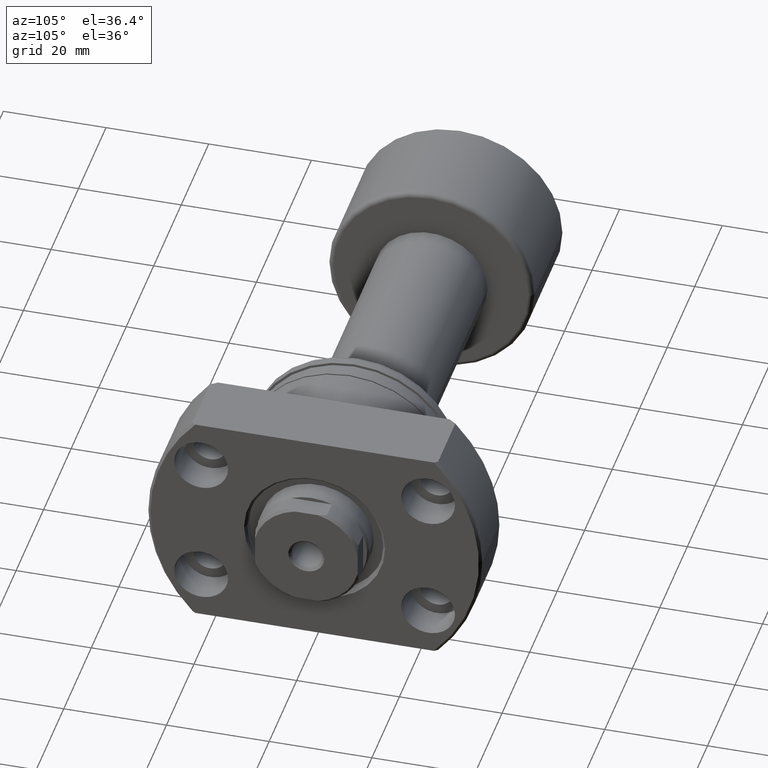
[diagram: clean part render]
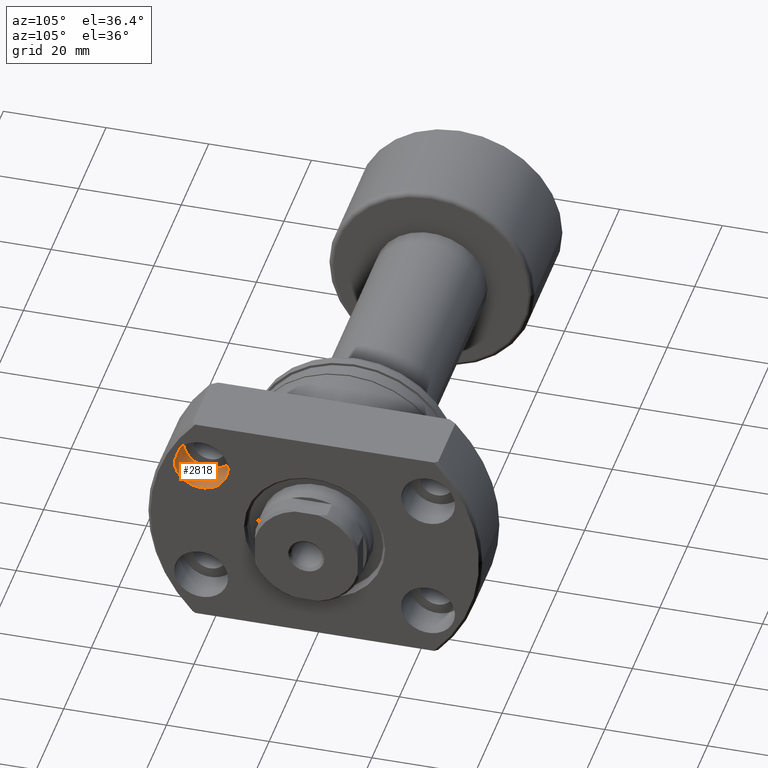
[diagram: same view with one face highlighted and labeled with its STEP entity id]
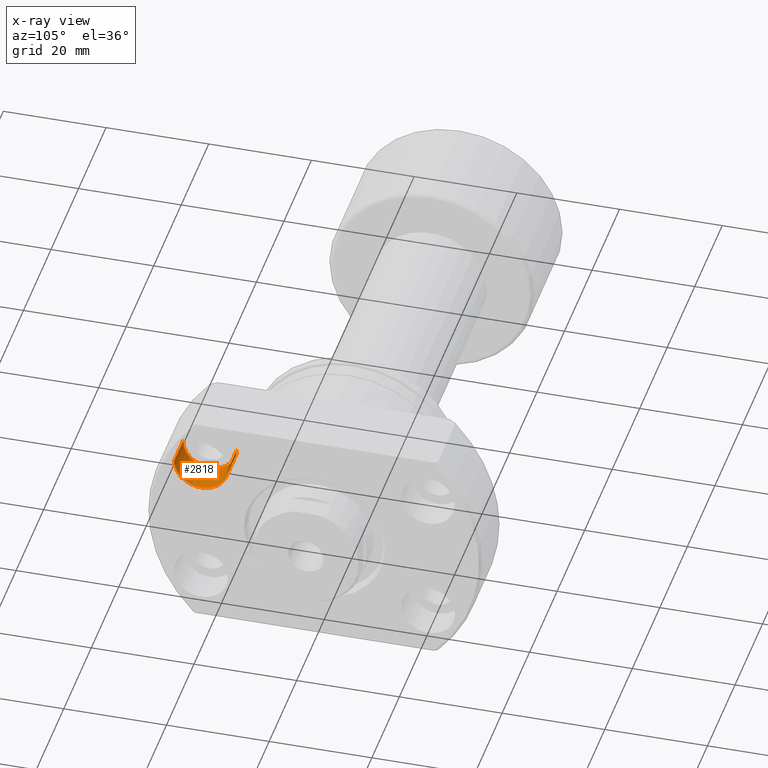
[diagram: x-ray of the same camera — body ghosted, the highlighted face saturated]
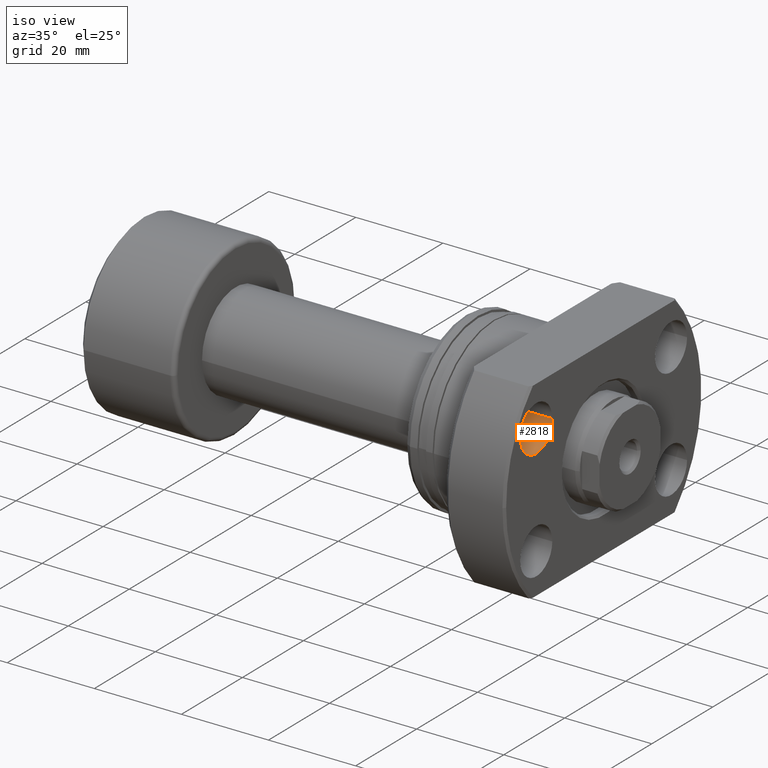
[diagram: same view with one face highlighted and labeled with its STEP entity id]
A machine part, auxiliary view. The second image highlights one B-rep face of the part: STEP entity #2818.
The next image is the same camera in x-ray: the body ghosted, the highlighted face saturated — about 0% of this face is hidden behind the body in this view.
A second angle (iso view) of the same face is appended — the face is thin or edge-on in the first view.
In plain terms, the highlighted cylindrical surface (edge-blend (fillet) strip) has radius 5.25 mm, axis along (1, -0, 0).
Its self-contained STEP definition (entity closure, byte-faithful):
#30 = EDGE_CURVE ( 'NONE', #141, #59, #115, .T. ) ;
#59 = VERTEX_POINT ( 'NONE', #2413 ) ;
#72 = VERTEX_POINT ( 'NONE', #3163 ) ;
#115 = CIRCLE ( 'NONE', #633, 5.250000000000000888 ) ;
#137 = CYLINDRICAL_SURFACE ( 'NONE', #2040, 5.250000000000000888 ) ;
#139 = LINE ( 'NONE', #2652, #2364 ) ;
#141 = VERTEX_POINT ( 'NONE', #1834 ) ;
#314 = CARTESIAN_POINT ( 'NONE',  ( 31.49999999999936051, -22.10000000000091092, 12.74999999999999822 ) ) ;
#449 = ORIENTED_EDGE ( 'NONE', *, *, #894, .F. ) ;
#471 = FACE_OUTER_BOUND ( 'NONE', #1959, .T. ) ;
#633 = AXIS2_PLACEMENT_3D ( 'NONE', #314, #1309, #2306 ) ;
#894 = EDGE_CURVE ( 'NONE', #2960, #72, #1068, .T. ) ;
#955 = DIRECTION ( 'NONE',  ( 1.000000000000000000, -2.887798767815668620E-14, -6.310887241768094443E-30 ) ) ;
#1003 = DIRECTION ( 'NONE',  ( 2.907726969256361977E-14, 1.000000000000000000, 0.000000000000000000 ) ) ;
#1068 = CIRCLE ( 'NONE', #1956, 5.250000000000000888 ) ;
#1080 = ORIENTED_EDGE ( 'NONE', *, *, #1081, .F. ) ;
#1081 = EDGE_CURVE ( 'NONE', #72, #59, #139, .T. ) ;
#1102 = DIRECTION ( 'NONE',  ( 1.000000000000000000, -2.886466111666352516E-14, -0.000000000000000000 ) ) ;
#1309 = DIRECTION ( 'NONE',  ( 1.000000000000000000, -2.887798767815668620E-14, -6.310887241768094443E-30 ) ) ;
#1572 = EDGE_CURVE ( 'NONE', #2960, #141, #2851, .T. ) ;
#1834 = CARTESIAN_POINT ( 'NONE',  ( 31.49999999999920774, -27.35000000000091092, 12.74999999999999822 ) ) ;
#1956 = AXIS2_PLACEMENT_3D ( 'NONE', #3226, #955, #1003 ) ;
#1959 = EDGE_LOOP ( 'NONE', ( #449, #2227, #3221, #1080 ) ) ;
#2011 = VECTOR ( 'NONE', #1102, 1000.000000000000000 ) ;
#2040 = AXIS2_PLACEMENT_3D ( 'NONE', #2785, #2235, #2994 ) ;
#2135 = CARTESIAN_POINT ( 'NONE',  ( 24.99999999999921130, -27.35000000000072617, 12.74999999999999822 ) ) ;
#2227 = ORIENTED_EDGE ( 'NONE', *, *, #1572, .T. ) ;
#2235 = DIRECTION ( 'NONE',  ( 1.000000000000000000, -2.886466111666352516E-14, -0.000000000000000000 ) ) ;
#2306 = DIRECTION ( 'NONE',  ( 2.907726969256361977E-14, 1.000000000000000000, 0.000000000000000000 ) ) ;
#2364 = VECTOR ( 'NONE', #2882, 1000.000000000000000 ) ;
#2413 = CARTESIAN_POINT ( 'NONE',  ( 31.49999999999951328, -16.85000000000091092, 12.74999999999999822 ) ) ;
#2652 = CARTESIAN_POINT ( 'NONE',  ( 24.99999999999951683, -16.85000000000072262, 12.74999999999999822 ) ) ;
#2785 = CARTESIAN_POINT ( 'NONE',  ( 24.99999999999936406, -22.10000000000072262, 12.74999999999999822 ) ) ;
#2818 = ADVANCED_FACE ( 'NONE', ( #471 ), #137, .F. ) ;
#2851 = LINE ( 'NONE', #2135, #2011 ) ;
#2882 = DIRECTION ( 'NONE',  ( 1.000000000000000000, -2.886466111666352516E-14, -0.000000000000000000 ) ) ;
#2960 = VERTEX_POINT ( 'NONE', #3212 ) ;
#2994 = DIRECTION ( 'NONE',  ( 2.907726969256361977E-14, 1.000000000000000000, 0.000000000000000000 ) ) ;
#3163 = CARTESIAN_POINT ( 'NONE',  ( 24.99999999999951683, -16.85000000000072262, 12.74999999999999822 ) ) ;
#3212 = CARTESIAN_POINT ( 'NONE',  ( 24.99999999999921130, -27.35000000000072617, 12.74999999999999822 ) ) ;
#3221 = ORIENTED_EDGE ( 'NONE', *, *, #30, .T. ) ;
#3226 = CARTESIAN_POINT ( 'NONE',  ( 24.99999999999936406, -22.10000000000072262, 12.74999999999999822 ) ) ;